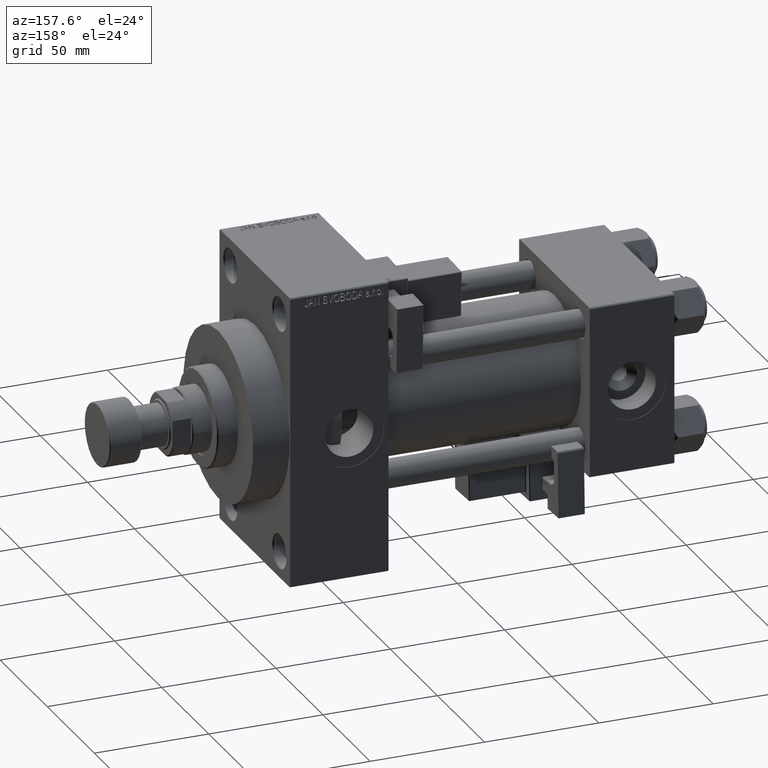
[diagram: clean part render]
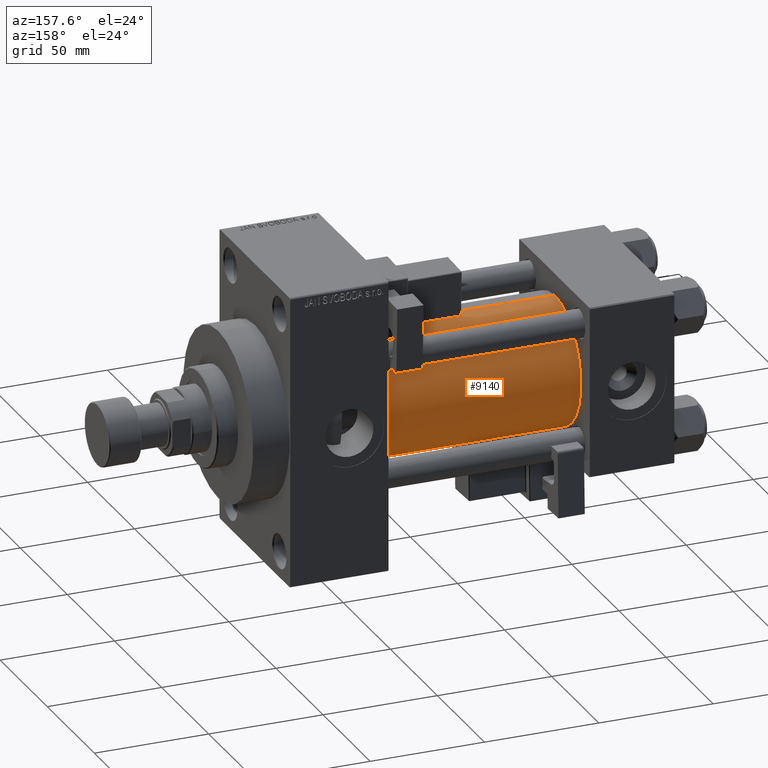
[diagram: same view with one face highlighted and labeled with its STEP entity id]
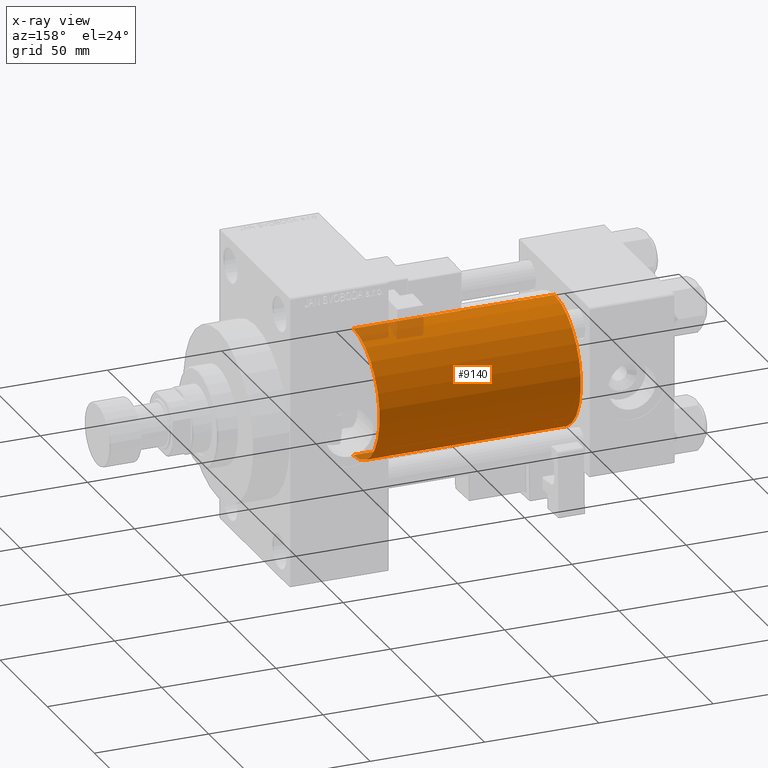
[diagram: x-ray of the same camera — body ghosted, the highlighted face saturated]
A machine part, auxiliary view. The second image highlights one B-rep face of the part: STEP entity #9140.
The next image is the same camera in x-ray: the body ghosted, the highlighted face saturated — about 4% of this face is hidden behind the body in this view.
In plain terms, the highlighted cylindrical surface (partial cylindrical patch) has radius 28 mm, axis along (-1, -0, -0).
Its self-contained STEP definition (entity closure, byte-faithful):
#1950 = VECTOR ( 'NONE', #9956, 1000.000000000000000 ) ;
#3371 = CARTESIAN_POINT ( 'NONE',  ( 125.0000000000000000, -2.602085213965210642E-15, 28.00000000000000000 ) ) ;
#4797 = EDGE_CURVE ( 'NONE', #27141, #45741, #7834, .T. ) ;
#7776 = CARTESIAN_POINT ( 'NONE',  ( 125.0000000000000000, -2.602085213965210642E-15, 0.000000000000000000 ) ) ;
#7834 = LINE ( 'NONE', #3371, #44216 ) ;
#8257 = DIRECTION ( 'NONE',  ( 0.000000000000000000, 0.000000000000000000, 1.000000000000000000 ) ) ;
#9140 = ADVANCED_FACE ( 'NONE', ( #23030 ), #38772, .T. ) ;
#9224 = ORIENTED_EDGE ( 'NONE', *, *, #25957, .F. ) ;
#9956 = DIRECTION ( 'NONE',  ( -1.000000000000000000, -0.000000000000000000, -0.000000000000000000 ) ) ;
#10943 = DIRECTION ( 'NONE',  ( -1.000000000000000000, -0.000000000000000000, -0.000000000000000000 ) ) ;
#12339 = CARTESIAN_POINT ( 'NONE',  ( 125.0000000000000000, 8.269258236473784371E-16, -28.00000000000000000 ) ) ;
#12920 = DIRECTION ( 'NONE',  ( 0.000000000000000000, 0.000000000000000000, -1.000000000000000000 ) ) ;
#17837 = CARTESIAN_POINT ( 'NONE',  ( 125.0000000000000000, 8.269258236473784371E-16, -28.00000000000000000 ) ) ;
#20451 = CARTESIAN_POINT ( 'NONE',  ( 37.00000000000000711, 8.269258236473784371E-16, -28.00000000000000000 ) ) ;
#23030 = FACE_OUTER_BOUND ( 'NONE', #38887, .T. ) ;
#23092 = CIRCLE ( 'NONE', #23960, 28.00000000000000000 ) ;
#23960 = AXIS2_PLACEMENT_3D ( 'NONE', #28685, #29196, #12920 ) ;
#25957 = EDGE_CURVE ( 'NONE', #39095, #27141, #23092, .T. ) ;
#27141 = VERTEX_POINT ( 'NONE', #29409 ) ;
#28685 = CARTESIAN_POINT ( 'NONE',  ( 125.0000000000000000, -2.602085213965210642E-15, 0.000000000000000000 ) ) ;
#29196 = DIRECTION ( 'NONE',  ( 1.000000000000000000, 0.000000000000000000, 0.000000000000000000 ) ) ;
#29409 = CARTESIAN_POINT ( 'NONE',  ( 125.0000000000000000, -2.602085213965210642E-15, 28.00000000000000000 ) ) ;
#31547 = VERTEX_POINT ( 'NONE', #20451 ) ;
#33294 = CARTESIAN_POINT ( 'NONE',  ( 37.00000000000000711, -2.602085213965210642E-15, 28.00000000000000000 ) ) ;
#33859 = LINE ( 'NONE', #17837, #1950 ) ;
#35408 = DIRECTION ( 'NONE',  ( -1.000000000000000000, -0.000000000000000000, -0.000000000000000000 ) ) ;
#35833 = CARTESIAN_POINT ( 'NONE',  ( 37.00000000000000711, -2.602085213965210642E-15, 0.000000000000000000 ) ) ;
#37771 = CIRCLE ( 'NONE', #47860, 28.00000000000000000 ) ;
#38772 = CYLINDRICAL_SURFACE ( 'NONE', #45130, 28.00000000000000000 ) ;
#38887 = EDGE_LOOP ( 'NONE', ( #9224, #42552, #48877, #39873 ) ) ;
#39095 = VERTEX_POINT ( 'NONE', #12339 ) ;
#39873 = ORIENTED_EDGE ( 'NONE', *, *, #4797, .F. ) ;
#42552 = ORIENTED_EDGE ( 'NONE', *, *, #51906, .T. ) ;
#42711 = DIRECTION ( 'NONE',  ( 0.000000000000000000, 0.000000000000000000, 1.000000000000000000 ) ) ;
#43993 = EDGE_CURVE ( 'NONE', #31547, #45741, #37771, .T. ) ;
#44216 = VECTOR ( 'NONE', #35408, 1000.000000000000000 ) ;
#45130 = AXIS2_PLACEMENT_3D ( 'NONE', #7776, #10943, #42711 ) ;
#45741 = VERTEX_POINT ( 'NONE', #33294 ) ;
#47860 = AXIS2_PLACEMENT_3D ( 'NONE', #35833, #48183, #8257 ) ;
#48183 = DIRECTION ( 'NONE',  ( 1.000000000000000000, -0.000000000000000000, 0.000000000000000000 ) ) ;
#48877 = ORIENTED_EDGE ( 'NONE', *, *, #43993, .T. ) ;
#51906 = EDGE_CURVE ( 'NONE', #39095, #31547, #33859, .T. ) ;